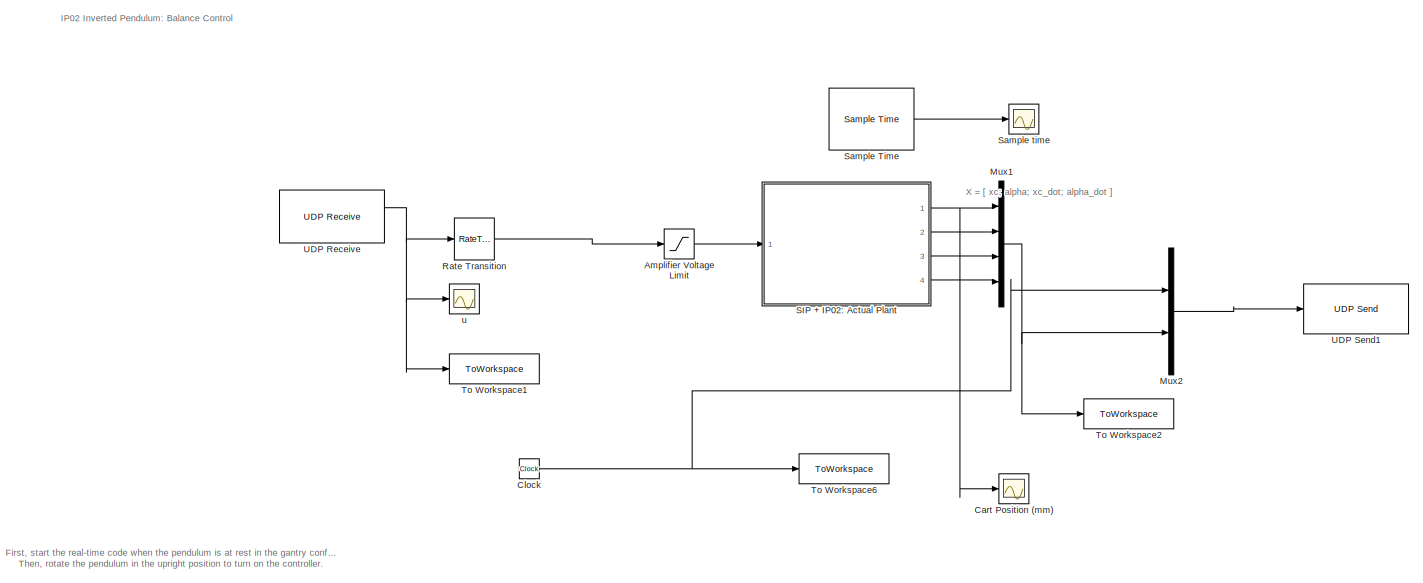
[diagram: root canvas - part 1/2, most of the canvas]
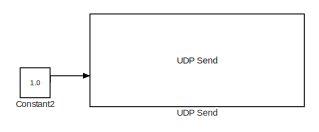
[diagram: root canvas - part 2/2, top left region]
MODEL slx_00a1029c0241
KIND model
CONFIG AbsTol = auto
CONFIG EnableMultiTasking = on
CONFIG FixedStep = 0.002
CONFIG MaxStep = auto
CONFIG MinStep = auto
CONFIG RelTol = 1e-3
CONFIG SampleTimeConstraint = Unconstrained
CONFIG SolverName = ode4
CONFIG StartTime = 0.0
CONFIG StopTime = 1000
BLOCK [Saturate] Amplifier Voltage Limit
  LowerLimit = - VMAX_AMP
  UpperLimit = VMAX_AMP
BLOCK [Scope] Cart Position (mm)
  Floating = off
  NumInputPorts = 1
  Ports = [1]
  ScopeSpecificationString = Simulink.scopes.TimeScopeBlockCfg('CurrentConfiguration', extmgr.ConfigurationSet(extmgr.Configuration('Core','General UI',true),extmgr.Configuration('Core','Source UI',true),extmgr.Configuration('Sources','WiredSimulink',true,'DataLoggingVariableName','ScopeData2','DataLoggingSaveFormat','Array','DataLoggingDecimation','1','DataLoggingDecimateData',true,'DataLoggingMaxPoints','100000'),extmgr.Con...<+1873ch>
BLOCK [Clock] Clock
BLOCK [Constant] Constant2
  Commented = on
  OutDataTypeStr = double
  Value = 1.0
BLOCK [Mux] Mux1
  DisplayOption = bar
  Ports = [4, 1]
BLOCK [Mux] Mux2
  DisplayOption = bar
  Inputs = 2
  Ports = [2, 1]
BLOCK [RateTransition] Rate Transition
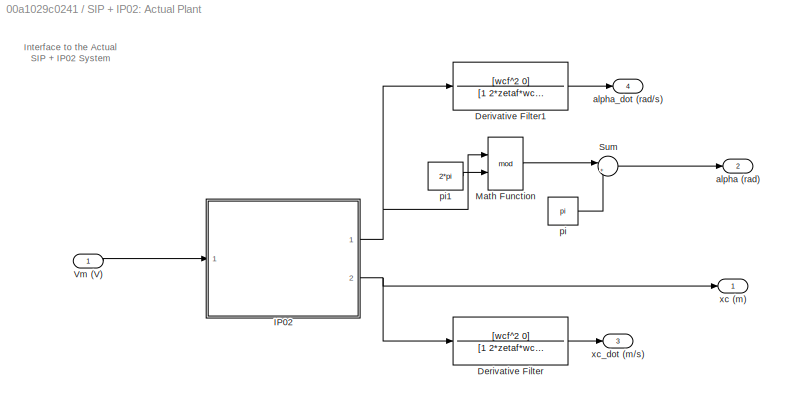
BLOCK [SubSystem] SIP + IP02: Actual Plant
  Ports = [1, 4]
  RequestExecContextInheritance = off
BLOCK [TransferFcn] SIP + IP02: Actual Plant/Derivative Filter
  Denominator = [1 2*zetaf*wcf wcf^2]
  Numerator = [wcf^2 0]
BLOCK [TransferFcn] SIP + IP02: Actual Plant/Derivative Filter1
  Denominator = [1 2*zetaf*wcf wcf^2]
  Numerator = [wcf^2 0]
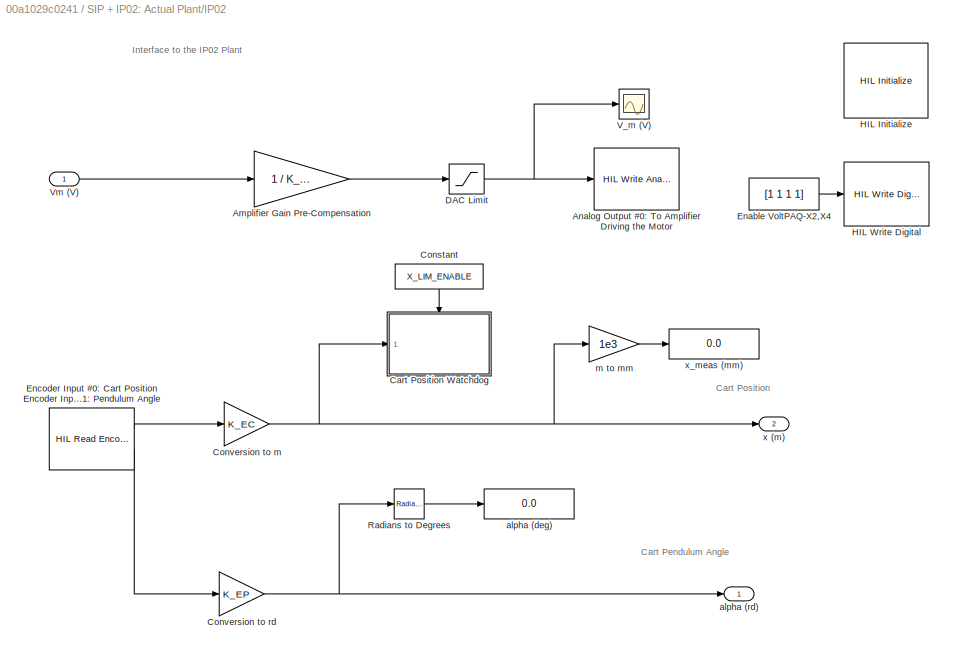
BLOCK [SubSystem] SIP + IP02: Actual Plant/IP02 
  Ports = [1, 2]
  RequestExecContextInheritance = off
BLOCK [Gain] SIP + IP02: Actual Plant/IP02 /Amplifier Gain Pre-Compensation
  Gain = 1 / K_AMP
  OutDataTypeStr = Inherit: Same as input
  ParamDataTypeStr = Inherit: Same as input
  SaturateOnIntegerOverflow = on
BLOCK [Reference] SIP + IP02: Actual Plant/IP02 /Analog Output #0: To Amplifier Driving the Motor  REF=quarc_library/Data Acquisition/Generic/Immediate I//O/HIL Write Analog
  AttributesFormatString = (%<object_name>)
  Ports = [1]
  SourceBlock = quarc_library/Data Acquisition/Generic/Immediate I//O/HIL Write Analog
  SourceProductName = QUARC Targets
  SourceType = HIL Write Analog
  Tag = unassigned
  UserDataPersistent = on
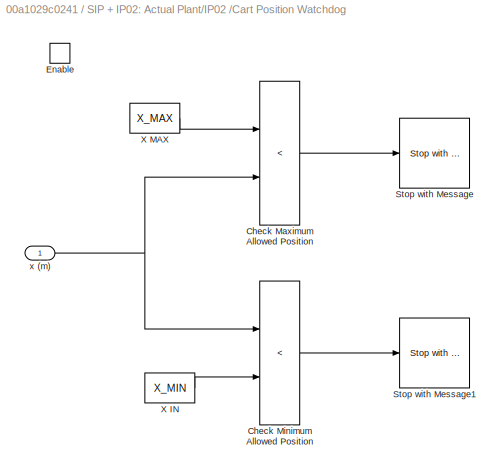
BLOCK [SubSystem] SIP + IP02: Actual Plant/IP02 /Cart Position Watchdog
  Ports = [1, 0, 1]
  RequestExecContextInheritance = off
  TreatAsAtomicUnit = on
BLOCK [RelationalOperator] SIP + IP02: Actual Plant/IP02 /Cart Position Watchdog/Check Maximum Allowed Position
  Operator = <
  Ports = [2, 1]
BLOCK [RelationalOperator] SIP + IP02: Actual Plant/IP02 /Cart Position Watchdog/Check Minimum Allowed Position
  Operator = <
  Ports = [2, 1]
BLOCK [EnablePort] SIP + IP02: Actual Plant/IP02 /Cart Position Watchdog/Enable
  Ports = []
BLOCK [Reference] SIP + IP02: Actual Plant/IP02 /Cart Position Watchdog/Stop with Message  REF=quarc_library/Sinks/Error Handling/Stop with Message
  AttributesFormatString = "%<message>"
  Ports = [1]
  SourceBlock = quarc_library/Sinks/Error Handling/Stop with Message
  SourceProductName = QUARC Targets
  SourceType = Stop with Message
BLOCK [Reference] SIP + IP02: Actual Plant/IP02 /Cart Position Watchdog/Stop with Message1  REF=quarc_library/Sinks/Error Handling/Stop with Message
  AttributesFormatString = "%<message>"
  Ports = [1]
  SourceBlock = quarc_library/Sinks/Error Handling/Stop with Message
  SourceProductName = QUARC Targets
  SourceType = Stop with Message
BLOCK [Constant] SIP + IP02: Actual Plant/IP02 /Cart Position Watchdog/X IN
  Value = X_MIN
BLOCK [Constant] SIP + IP02: Actual Plant/IP02 /Cart Position Watchdog/X MAX
  Value = X_MAX
BLOCK [Inport] SIP + IP02: Actual Plant/IP02 /Cart Position Watchdog/x (m)
BLOCK [Constant] SIP + IP02: Actual Plant/IP02 /Constant
  NameLocation = right
  Value = X_LIM_ENABLE
BLOCK [Gain] SIP + IP02: Actual Plant/IP02 /Conversion to m
  Gain = K_EC
  OutDataTypeStr = Inherit: Same as input
  ParamDataTypeStr = Inherit: Same as input
  SaturateOnIntegerOverflow = on
BLOCK [Gain] SIP + IP02: Actual Plant/IP02 /Conversion to rd
  Gain = K_EP
  OutDataTypeStr = Inherit: Same as input
  ParamDataTypeStr = Inherit: Same as input
  SaturateOnIntegerOverflow = on
BLOCK [Saturate] SIP + IP02: Actual Plant/IP02 /DAC Limit
  LowerLimit = - VMAX_DAC
  UpperLimit = VMAX_DAC
BLOCK [Constant] SIP + IP02: Actual Plant/IP02 /Enable VoltPAQ-X2,X4
  Value = [1 1 1 1]
BLOCK [Reference] SIP + IP02: Actual Plant/IP02 /Encoder Input #0: Cart Position Encoder Input #1: Pendulum Angle  REF=quarc_library/Data Acquisition/Generic/Timebases/HIL Read Encoder
Timebase
  AttributesFormatString = (%<object_name>)
  Ports = [0, 2]
  SourceBlock = quarc_library/Data Acquisition/Generic/Timebases/HIL Read Encoder\nTimebase
  SourceProductName = QUARC Targets
  SourceType = HIL Read Encoder Timebase
  Tag = unassigned
  UserDataPersistent = on
BLOCK [Reference] SIP + IP02: Actual Plant/IP02 /HIL Initialize  REF=quarc_library/Data Acquisition/Generic/Configuration/HIL Initialize
  AttributesFormatString = %<object_name> (%<board_type>-%<board_number>)
  Ports = []
  SourceBlock = quarc_library/Data Acquisition/Generic/Configuration/HIL Initialize
  SourceProductName = QUARC Targets
  SourceType = HIL Initialize
  UserDataPersistent = on
BLOCK [Reference] SIP + IP02: Actual Plant/IP02 /HIL Write Digital  REF=quarc_library/Data Acquisition/Generic/Immediate I//O/HIL Write Digital
  AttributesFormatString = (%<object_name>)
  Ports = [1]
  SourceBlock = quarc_library/Data Acquisition/Generic/Immediate I//O/HIL Write Digital
  SourceProductName = QUARC Targets
  SourceType = HIL Write Digital
  UserDataPersistent = on
BLOCK [Reference] SIP + IP02: Actual Plant/IP02 /Radians to Degrees  REF=simulink_extras/Transformations/Radians
to Degrees
  Ports = [1, 1]
  SourceBlock = simulink_extras/Transformations/Radians\nto Degrees
  SourceProductBaseCode = SL
  SourceType = RadiansToDegrees
BLOCK [Scope] SIP + IP02: Actual Plant/IP02 /V_m (V)
  Floating = off
  NumInputPorts = 1
  Ports = [1]
  ScopeSpecificationString = Simulink.scopes.TimeScopeBlockCfg('CurrentConfiguration', extmgr.ConfigurationSet(extmgr.Configuration('Core','General UI',true),extmgr.Configuration('Core','Source UI',true),extmgr.Configuration('Sources','WiredSimulink',true,'DataLoggingVariableName','data_Vm','DataLoggingMaxPoints','20000','DataLoggingLimitDataPoints',true,'DataLoggingSaveFormat','Array','DataLoggingDecimation','1','DataLogging...<+1759ch>
BLOCK [Inport] SIP + IP02: Actual Plant/IP02 /Vm (V)
BLOCK [Display] SIP + IP02: Actual Plant/IP02 /alpha (deg)
  Decimation = 100
  Ports = [1]
BLOCK [Outport] SIP + IP02: Actual Plant/IP02 /alpha (rd)
  InitialOutput = 0
BLOCK [Gain] SIP + IP02: Actual Plant/IP02 /m to mm
  Gain = 1e3
  OutDataTypeStr = Inherit: Same as input
  ParamDataTypeStr = Inherit: Same as input
  SaturateOnIntegerOverflow = on
BLOCK [Outport] SIP + IP02: Actual Plant/IP02 /x (m)
  InitialOutput = 0
  Port = 2
BLOCK [Display] SIP + IP02: Actual Plant/IP02 /x_meas (mm)
  Decimation = 100
  Ports = [1]
BLOCK [Math] SIP + IP02: Actual Plant/Math Function
  Operator = mod
  Ports = [2, 1]
  SignedPower = on
BLOCK [Sum] SIP + IP02: Actual Plant/Sum
  InputSameDT = on
  Inputs = |+-
  OutDataTypeStr = Inherit: Same as first input
  Ports = [2, 1]
  SaturateOnIntegerOverflow = on
BLOCK [Inport] SIP + IP02: Actual Plant/Vm (V)
BLOCK [Outport] SIP + IP02: Actual Plant/alpha (rad)
  InitialOutput = 0
  Port = 2
BLOCK [Outport] SIP + IP02: Actual Plant/alpha_dot (rad//s)
  InitialOutput = 0
  Port = 4
BLOCK [Constant] SIP + IP02: Actual Plant/pi
  Value = pi
BLOCK [Constant] SIP + IP02: Actual Plant/pi1
  Value = 2*pi
BLOCK [Outport] SIP + IP02: Actual Plant/xc (m)
  InitialOutput = 0
BLOCK [Outport] SIP + IP02: Actual Plant/xc_dot (m//s)
  InitialOutput = 0
  Port = 3
BLOCK [Reference] Sample Time  REF=quarc_library/Sources/Time/Sample Time
  Ports = [0, 1]
  Priority = -99
  SourceBlock = quarc_library/Sources/Time/Sample Time
  SourceProductName = QUARC Targets
  SourceType = Sample Time
BLOCK [Scope] Sample time
  Floating = off
  NumInputPorts = 1
  Ports = [1]
  ScopeSpecificationString = Simulink.scopes.TimeScopeBlockCfg('CurrentConfiguration', extmgr.ConfigurationSet(extmgr.Configuration('Core','General UI',true),extmgr.Configuration('Core','Source UI',true),extmgr.Configuration('Sources','WiredSimulink',true,'DataLoggingVariableName','ScopeData1','DataLoggingSaveFormat','Array','DataLoggingDecimation','1','DataLoggingDecimateData',true,'DataLoggingMaxPoints','100000'),extmgr.Con...<+1873ch>
BLOCK [ToWorkspace] To Workspace1
  FixptAsFi = on
  MaxDataPoints = inf
  Ports = [1]
  SampleTime = -1
  Save2DSignal = 2-D array (concatenate along first dimension)
  SaveFormat = Structure With Time
  VariableName = us
BLOCK [ToWorkspace] To Workspace2
  FixptAsFi = on
  MaxDataPoints = inf
  Ports = [1]
  SampleTime = -1
  Save2DSignal = 2-D array (concatenate along first dimension)
  SaveFormat = Structure With Time
  VariableName = xs
BLOCK [ToWorkspace] To Workspace6
  FixptAsFi = on
  MaxDataPoints = inf
  Ports = [1]
  SampleTime = -1
  Save2DSignal = 2-D array (concatenate along first dimension)
  SaveFormat = Structure With Time
  VariableName = ts
BLOCK [Reference] UDP Receive  REF=dspnetwork/UDP Receive
  Ports = [0, 2]
  SourceBlock = dspnetwork/UDP Receive
  SourceProductBaseCode = SL
  SourceType = UDP Receive
BLOCK [Reference] UDP Send  REF=slrealtimeiplib/UDP Send
  Commented = on
  Ports = [2]
  SourceBlock = slrealtimeiplib/UDP Send
  SourceProductBaseCode = XP
  SourceType = slrealtimeudpsend
BLOCK [Reference] UDP Send1  REF=dspnetwork/UDP Send
  Ports = [1]
  SourceBlock = dspnetwork/UDP Send
  SourceProductBaseCode = SL
  SourceType = UDP Send
BLOCK [Scope] u
  Floating = off
  NumInputPorts = 1
  Ports = [1]
  ScopeSpecificationString = Simulink.scopes.TimeScopeBlockCfg('CurrentConfiguration', extmgr.ConfigurationSet(extmgr.Configuration('Core','General UI',true),extmgr.Configuration('Core','Source UI',true),extmgr.Configuration('Sources','WiredSimulink',true,'DataLoggingVariableName','ScopeData1','DataLoggingSaveFormat','Structure','DataLoggingDecimation','1','DataLoggingMaxPoints','100000','DataLogging',true),extmgr.Configurati...<+1873ch>
ANNOTATION (root): First, start the real-time code when the pendulum is at rest in the gantry configuration. Then, rotate the pendulum in the upright position to turn on the controller.
ANNOTATION (root): IP02 Inverted Pendulum: Balance Control
ANNOTATION (root): X = [ xc; alpha; xc_dot; alpha_dot ]
ANNOTATION SIP + IP02: Actual Plant: Interface to the Actual SIP + IP02 System
ANNOTATION SIP + IP02: Actual Plant/IP02 : Cart Pendulum Angle
ANNOTATION SIP + IP02: Actual Plant/IP02 : Cart Position
ANNOTATION SIP + IP02: Actual Plant/IP02 : Interface to the IP02 Plant
LINE Amplifier Voltage Limit:1 -> SIP + IP02: Actual Plant:1
NET Clock:1 -> Mux2:1, To Workspace6:1
LINE Constant2:1 -> UDP Send:2
NET Mux1:1 -> Mux2:2, To Workspace2:1
LINE Mux2:1 -> UDP Send1:1
LINE Rate Transition:1 -> Amplifier Voltage Limit:1
LINE SIP + IP02: Actual Plant/Derivative Filter1:1 -> SIP + IP02: Actual Plant/alpha_dot (rad//s):1
LINE SIP + IP02: Actual Plant/Derivative Filter:1 -> SIP + IP02: Actual Plant/xc_dot (m//s):1
LINE SIP + IP02: Actual Plant/IP02 /Amplifier Gain Pre-Compensation:1 -> SIP + IP02: Actual Plant/IP02 /DAC Limit:1
LINE SIP + IP02: Actual Plant/IP02 /Cart Position Watchdog/Check Maximum Allowed Position:1 -> SIP + IP02: Actual Plant/IP02 /Cart Position Watchdog/Stop with Message:1
LINE SIP + IP02: Actual Plant/IP02 /Cart Position Watchdog/Check Minimum Allowed Position:1 -> SIP + IP02: Actual Plant/IP02 /Cart Position Watchdog/Stop with Message1:1
LINE SIP + IP02: Actual Plant/IP02 /Cart Position Watchdog/X IN:1 -> SIP + IP02: Actual Plant/IP02 /Cart Position Watchdog/Check Minimum Allowed Position:2
LINE SIP + IP02: Actual Plant/IP02 /Cart Position Watchdog/X MAX:1 -> SIP + IP02: Actual Plant/IP02 /Cart Position Watchdog/Check Maximum Allowed Position:1
NET SIP + IP02: Actual Plant/IP02 /Cart Position Watchdog/x (m):1 -> SIP + IP02: Actual Plant/IP02 /Cart Position Watchdog/Check Maximum Allowed Position:2, SIP + IP02: Actual Plant/IP02 /Cart Position Watchdog/Check Minimum Allowed Position:1
LINE SIP + IP02: Actual Plant/IP02 /Constant:1 -> SIP + IP02: Actual Plant/IP02 /Cart Position Watchdog:enable
NET SIP + IP02: Actual Plant/IP02 /Conversion to m:1 -> SIP + IP02: Actual Plant/IP02 /Cart Position Watchdog:1, SIP + IP02: Actual Plant/IP02 /m to mm:1, SIP + IP02: Actual Plant/IP02 /x (m):1
NET SIP + IP02: Actual Plant/IP02 /Conversion to rd:1 -> SIP + IP02: Actual Plant/IP02 /Radians to Degrees:1, SIP + IP02: Actual Plant/IP02 /alpha (rd):1
NET SIP + IP02: Actual Plant/IP02 /DAC Limit:1 -> SIP + IP02: Actual Plant/IP02 /Analog Output #0: To Amplifier Driving the Motor:1, SIP + IP02: Actual Plant/IP02 /V_m (V):1
LINE SIP + IP02: Actual Plant/IP02 /Enable VoltPAQ-X2,X4:1 -> SIP + IP02: Actual Plant/IP02 /HIL Write Digital:1
LINE SIP + IP02: Actual Plant/IP02 /Encoder Input #0: Cart Position Encoder Input #1: Pendulum Angle:1 -> SIP + IP02: Actual Plant/IP02 /Conversion to m:1
LINE SIP + IP02: Actual Plant/IP02 /Encoder Input #0: Cart Position Encoder Input #1: Pendulum Angle:2 -> SIP + IP02: Actual Plant/IP02 /Conversion to rd:1
LINE SIP + IP02: Actual Plant/IP02 /Radians to Degrees:1 -> SIP + IP02: Actual Plant/IP02 /alpha (deg):1
LINE SIP + IP02: Actual Plant/IP02 /Vm (V):1 -> SIP + IP02: Actual Plant/IP02 /Amplifier Gain Pre-Compensation:1
LINE SIP + IP02: Actual Plant/IP02 /m to mm:1 -> SIP + IP02: Actual Plant/IP02 /x_meas (mm):1
NET SIP + IP02: Actual Plant/IP02 :1 -> SIP + IP02: Actual Plant/Derivative Filter1:1, SIP + IP02: Actual Plant/Math Function:1
NET SIP + IP02: Actual Plant/IP02 :2 -> SIP + IP02: Actual Plant/Derivative Filter:1, SIP + IP02: Actual Plant/xc (m):1
LINE SIP + IP02: Actual Plant/Math Function:1 -> SIP + IP02: Actual Plant/Sum:1
LINE SIP + IP02: Actual Plant/Sum:1 -> SIP + IP02: Actual Plant/alpha (rad):1
LINE SIP + IP02: Actual Plant/Vm (V):1 -> SIP + IP02: Actual Plant/IP02 :1
LINE SIP + IP02: Actual Plant/pi1:1 -> SIP + IP02: Actual Plant/Math Function:2
LINE SIP + IP02: Actual Plant/pi:1 -> SIP + IP02: Actual Plant/Sum:2
NET SIP + IP02: Actual Plant:1 -> Cart Position (mm):1, Mux1:1
LINE SIP + IP02: Actual Plant:2 -> Mux1:2
LINE SIP + IP02: Actual Plant:3 -> Mux1:3
LINE SIP + IP02: Actual Plant:4 -> Mux1:4
LINE Sample Time:1 -> Sample time:1
NET UDP Receive:1 -> Rate Transition:1, To Workspace1:1, u:1
note: NET lines group one-source signal fan-out (src -> all destinations, sorted); 1:1 wires keep LINE
